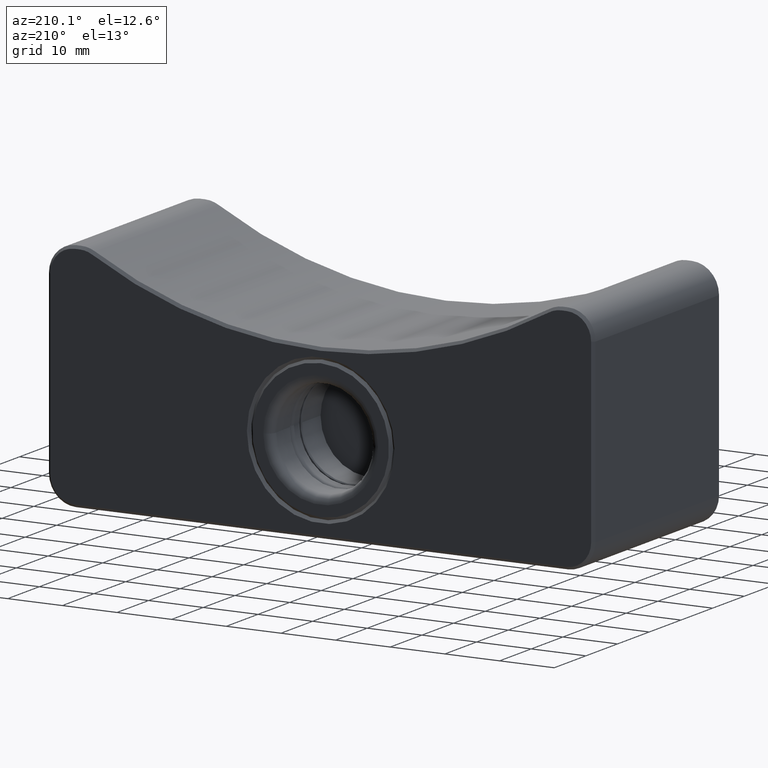
[diagram: clean part render]
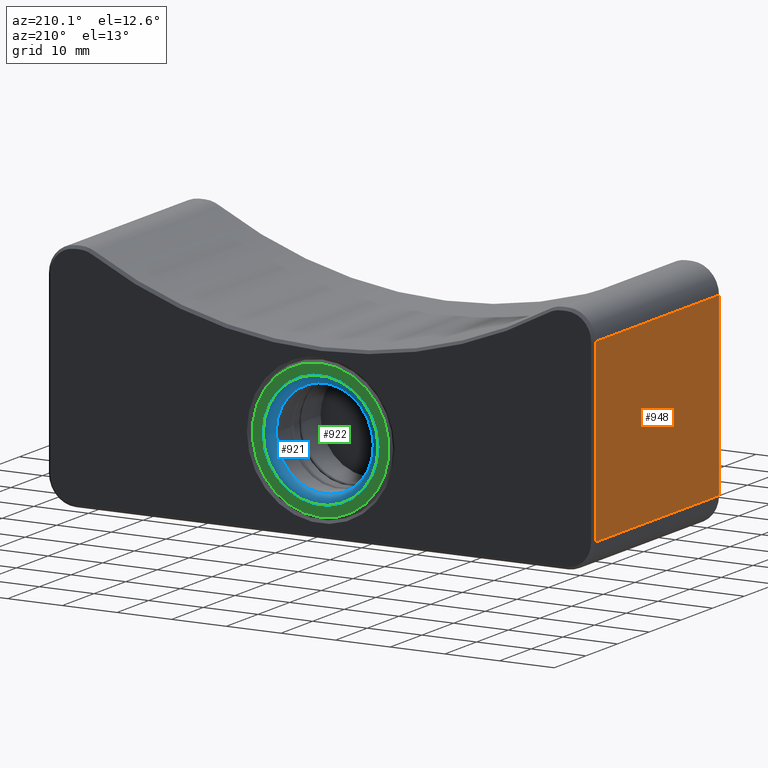
[diagram: same view with three faces highlighted in distinct colors, each labeled with its STEP entity id]
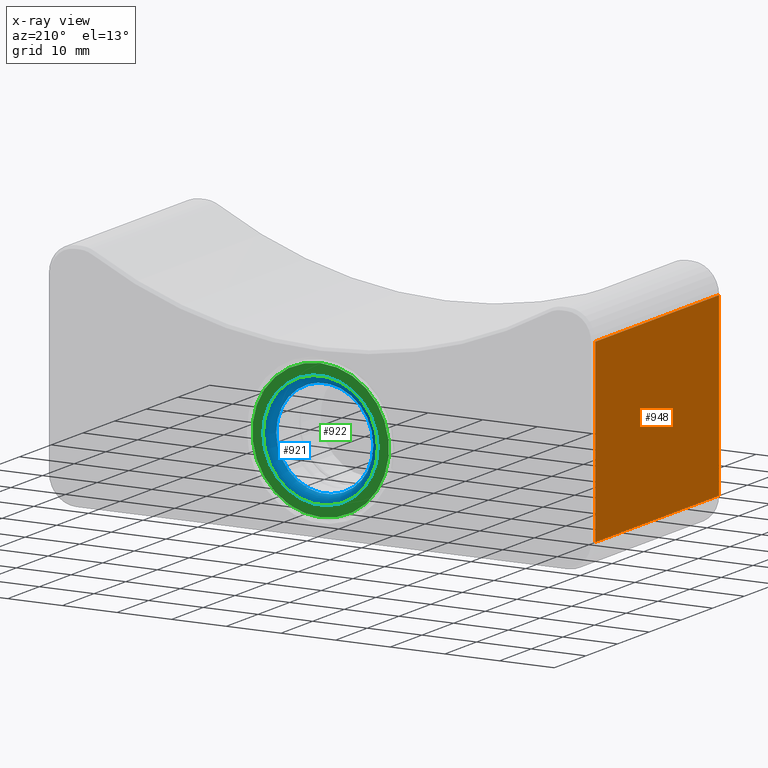
[diagram: x-ray of the same camera — body ghosted, the three highlighted faces saturated]
A machine part, auxiliary view with three faces highlighted in distinct colors.
The next image is the same camera in x-ray (body ghosted, the three faces saturated) — at least one of them is partly hidden behind the body in this view.
Their STEP definitions:

[orange] entity #948 — the highlighted planar face has unit normal (-1, 0, 0).
#61=PLANE('',#1112);
#120=FACE_OUTER_BOUND('',#187,.T.);
#187=EDGE_LOOP('',(#830,#831,#832,#833));
#226=LINE('',#1624,#292);
#228=LINE('',#1629,#294);
#250=LINE('',#1700,#316);
#253=LINE('',#1706,#319);
#292=VECTOR('',#1320,39.00000000203);
#294=VECTOR('',#1326,32.49999994493);
#316=VECTOR('',#1402,32.49999994493);
#319=VECTOR('',#1411,39.00000000287);
#455=VERTEX_POINT('',#1620);
#456=VERTEX_POINT('',#1622);
#457=VERTEX_POINT('',#1628);
#479=VERTEX_POINT('',#1698);
#560=EDGE_CURVE('',#455,#456,#226,.T.);
#562=EDGE_CURVE('',#455,#457,#228,.T.);
#598=EDGE_CURVE('',#479,#456,#250,.T.);
#601=EDGE_CURVE('',#457,#479,#253,.T.);
#830=ORIENTED_EDGE('',*,*,#562,.F.);
#831=ORIENTED_EDGE('',*,*,#560,.T.);
#832=ORIENTED_EDGE('',*,*,#598,.F.);
#833=ORIENTED_EDGE('',*,*,#601,.F.);
#948=ADVANCED_FACE('',(#120),#61,.T.);
#1112=AXIS2_PLACEMENT_3D('',#1705,#1409,#1410);
#1320=DIRECTION('',(0.,-1.,0.));
#1326=DIRECTION('',(1.290651690275E-11,1.290629827422E-11,1.));
#1402=DIRECTION('',(-1.290629827422E-11,1.290618895995E-11,-1.));
#1409=DIRECTION('center_axis',(-1.,0.,0.));
#1410=DIRECTION('ref_axis',(0.,0.,1.));
#1411=DIRECTION('',(0.,-1.,0.));
#1620=CARTESIAN_POINT('',(-49.9999999992988,39.5000000007013,-10.9999999663191));
#1622=CARTESIAN_POINT('',(-49.999999999299,0.499999999300949,-10.9999999663191));
#1624=CARTESIAN_POINT('',(-49.99999999898,39.50000000102,-10.99999996632));
#1628=CARTESIAN_POINT('',(-49.9999999990742,39.5000000007482,21.4999999792776));
#1629=CARTESIAN_POINT('',(-49.99999999898,39.50000000102,-10.99999996632));
#1698=CARTESIAN_POINT('',(-49.9999999990109,0.499999999012066,21.4999999786096));
#1700=CARTESIAN_POINT('',(-49.99999999856,0.4999999985643,21.49999997861));
#1705=CARTESIAN_POINT('Origin',(-50.,0.,-16.));
#1706=CARTESIAN_POINT('',(-49.99999999856,39.50000000144,21.49999997861));

[blue] entity #921 — the highlighted toroidal blend (fillet) surface has major radius 10.5 mm and minor (blend) radius 1.5 mm.
#73=TOROIDAL_SURFACE('',#1055,10.5,1.5);
#93=FACE_OUTER_BOUND('',#158,.T.);
#158=EDGE_LOOP('',(#704,#705,#706,#707,#708));
#367=CIRCLE('',#1053,9.);
#368=CIRCLE('',#1054,9.);
#369=CIRCLE('',#1056,10.5);
#370=CIRCLE('',#1057,1.5);
#430=VERTEX_POINT('',#1552);
#431=VERTEX_POINT('',#1553);
#432=VERTEX_POINT('',#1558);
#525=EDGE_CURVE('',#430,#431,#367,.T.);
#527=EDGE_CURVE('',#431,#430,#368,.T.);
#528=EDGE_CURVE('',#432,#432,#369,.T.);
#529=EDGE_CURVE('',#432,#431,#370,.T.);
#704=ORIENTED_EDGE('',*,*,#528,.F.);
#705=ORIENTED_EDGE('',*,*,#529,.T.);
#706=ORIENTED_EDGE('',*,*,#527,.T.);
#707=ORIENTED_EDGE('',*,*,#525,.T.);
#708=ORIENTED_EDGE('',*,*,#529,.F.);
#921=ADVANCED_FACE('',(#93),#73,.T.);
#1053=AXIS2_PLACEMENT_3D('',#1554,#1247,#1248);
#1054=AXIS2_PLACEMENT_3D('',#1556,#1250,#1251);
#1055=AXIS2_PLACEMENT_3D('',#1557,#1252,#1253);
#1056=AXIS2_PLACEMENT_3D('',#1559,#1254,#1255);
#1057=AXIS2_PLACEMENT_3D('',#1560,#1256,#1257);
#1247=DIRECTION('center_axis',(0.,-1.,0.));
#1248=DIRECTION('ref_axis',(-1.,0.,0.));
#1250=DIRECTION('center_axis',(0.,-1.,0.));
#1251=DIRECTION('ref_axis',(-1.,0.,0.));
#1252=DIRECTION('center_axis',(0.,-1.,0.));
#1253=DIRECTION('ref_axis',(-0.999976532516651,0.,0.00685086972393667));
#1254=DIRECTION('center_axis',(0.,-1.,0.));
#1255=DIRECTION('ref_axis',(-1.,0.,0.));
#1256=DIRECTION('center_axis',(0.00685086972393654,0.,0.999976532516651));
#1257=DIRECTION('ref_axis',(0.999976532516651,0.,-0.00685086972393654));
#1552=CARTESIAN_POINT('',(9.,38.5,0.));
#1553=CARTESIAN_POINT('',(8.99978879264986,38.5,-0.0616578275154289));
#1554=CARTESIAN_POINT('Origin',(0.,38.5,0.));
#1556=CARTESIAN_POINT('Origin',(0.,38.5,0.));
#1557=CARTESIAN_POINT('Origin',(0.,38.5,0.));
#1558=CARTESIAN_POINT('',(10.4997535914248,40.,-0.0719341321013337));
#1559=CARTESIAN_POINT('Origin',(0.,40.,0.));
#1560=CARTESIAN_POINT('Origin',(10.4997535914248,38.5,-0.0719341321013337));

[green] entity #922 — the highlighted planar face has unit normal (0, -1, 0).
#42=FACE_BOUND('',#160,.T.);
#49=PLANE('',#1058);
#94=FACE_OUTER_BOUND('',#159,.T.);
#159=EDGE_LOOP('',(#709));
#160=EDGE_LOOP('',(#710));
#369=CIRCLE('',#1056,10.5);
#371=CIRCLE('',#1059,12.49999805953);
#432=VERTEX_POINT('',#1558);
#433=VERTEX_POINT('',#1562);
#528=EDGE_CURVE('',#432,#432,#369,.T.);
#530=EDGE_CURVE('',#433,#433,#371,.T.);
#709=ORIENTED_EDGE('',*,*,#530,.F.);
#710=ORIENTED_EDGE('',*,*,#528,.T.);
#922=ADVANCED_FACE('',(#94,#42),#49,.F.);
#1056=AXIS2_PLACEMENT_3D('',#1559,#1254,#1255);
#1058=AXIS2_PLACEMENT_3D('',#1561,#1258,#1259);
#1059=AXIS2_PLACEMENT_3D('',#1563,#1260,#1261);
#1254=DIRECTION('center_axis',(0.,-1.,0.));
#1255=DIRECTION('ref_axis',(-1.,0.,0.));
#1258=DIRECTION('center_axis',(0.,-1.,0.));
#1259=DIRECTION('ref_axis',(-1.,0.,0.));
#1260=DIRECTION('center_axis',(0.,-1.,0.));
#1261=DIRECTION('ref_axis',(-1.,0.,0.));
#1558=CARTESIAN_POINT('',(10.4997535914248,40.,-0.0719341321013337));
#1559=CARTESIAN_POINT('Origin',(0.,40.,0.));
#1561=CARTESIAN_POINT('Origin',(0.,40.,0.));
#1562=CARTESIAN_POINT('',(3.40900439785549E-14,39.9999999999997,12.4999980595297));
#1563=CARTESIAN_POINT('Origin',(3.562085223985E-14,40.,0.));